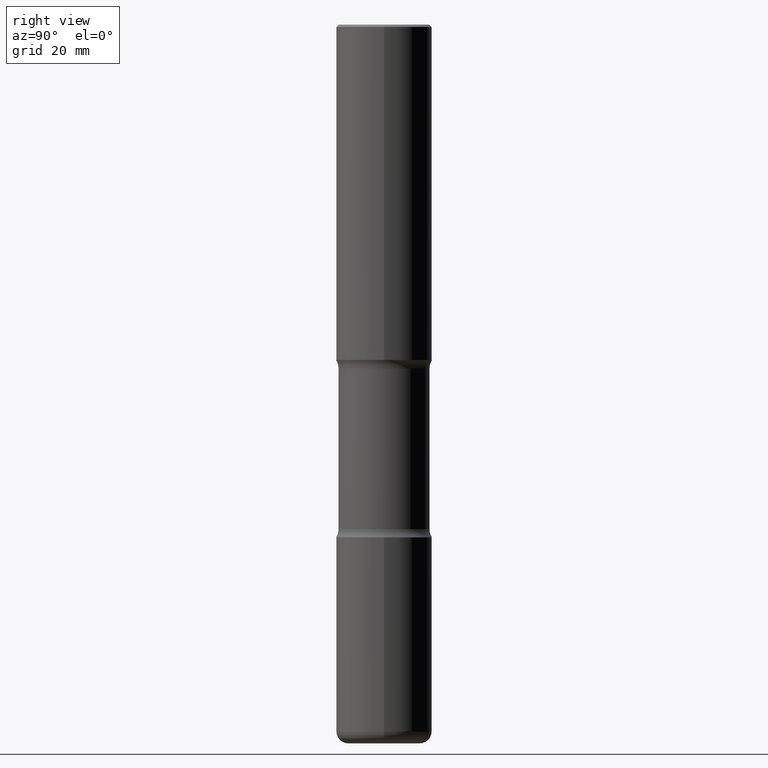
[diagram: clean part render]
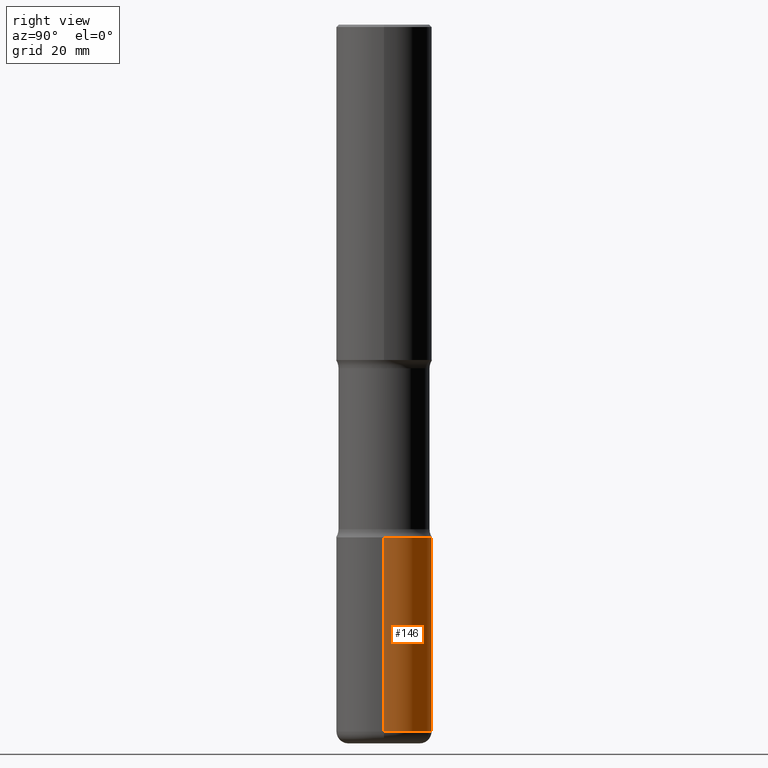
[diagram: same view with one face highlighted and labeled with its STEP entity id]
A machine part, right view. The second image highlights one B-rep face of the part: STEP entity #146.
In plain terms, the highlighted cylindrical surface (partial cylindrical patch) has radius 10 mm, axis along (-0, 0, 1).
Its self-contained STEP definition (entity closure, byte-faithful):
#12 = CARTESIAN_POINT ( 'NONE',  ( -0.3937000000000008271, -1.747797453210850398E-14, -5.807099999999998374 ) ) ;
#20 = FACE_OUTER_BOUND ( 'NONE', #331, .T. ) ;
#35 = CARTESIAN_POINT ( 'NONE',  ( 0.000000000000000000, 0.000000000000000000, 0.000000000000000000 ) ) ;
#64 = CIRCLE ( 'NONE', #71, 0.3937000000000004940 ) ;
#71 = AXIS2_PLACEMENT_3D ( 'NONE', #78, #415, #285 ) ;
#76 = CARTESIAN_POINT ( 'NONE',  ( 0.3937000000000008271, -2.302457368900111381E-14, -5.807099999999998374 ) ) ;
#78 = CARTESIAN_POINT ( 'NONE',  ( 1.420108190439770332E-28, -2.027538128279602429E-14, -5.807099999999998374 ) ) ;
#116 = CARTESIAN_POINT ( 'NONE',  ( 0.3937000000000002720, -1.745740669421571411E-14, -4.212599999999998346 ) ) ;
#118 = DIRECTION ( 'NONE',  ( -2.445468806185136877E-29, 3.491481338843145188E-15, 1.000000000000000000 ) ) ;
#132 = DIRECTION ( 'NONE',  ( -2.445468806185136597E-29, 3.491481338843145583E-15, 1.000000000000000000 ) ) ;
#146 = ADVANCED_FACE ( 'NONE', ( #20 ), #306, .T. ) ;
#150 = DIRECTION ( 'NONE',  ( -2.445468806185136877E-29, 3.491481338843145188E-15, 1.000000000000000000 ) ) ;
#159 = AXIS2_PLACEMENT_3D ( 'NONE', #365, #132, #179 ) ;
#168 = VECTOR ( 'NONE', #150, 39.37007874015748143 ) ;
#179 = DIRECTION ( 'NONE',  ( 1.000000000000000000, -6.982962677686269077E-15, 0.000000000000000000 ) ) ;
#234 = VERTEX_POINT ( 'NONE', #12 ) ;
#285 = DIRECTION ( 'NONE',  ( 1.000000000000000000, -6.982962677686269866E-15, 0.000000000000000000 ) ) ;
#303 = VECTOR ( 'NONE', #118, 39.37007874015748143 ) ;
#306 = CYLINDRICAL_SURFACE ( 'NONE', #405, 0.3937000000000003830 ) ;
#310 = ORIENTED_EDGE ( 'NONE', *, *, #394, .T. ) ;
#331 = EDGE_LOOP ( 'NONE', ( #381, #310, #430, #526 ) ) ;
#343 = EDGE_CURVE ( 'NONE', #429, #234, #64, .T. ) ;
#359 = VERTEX_POINT ( 'NONE', #402 ) ;
#365 = CARTESIAN_POINT ( 'NONE',  ( 1.030178189293550378E-28, -1.470821428801063089E-14, -4.212599999999998346 ) ) ;
#380 = EDGE_CURVE ( 'NONE', #508, #359, #407, .T. ) ;
#381 = ORIENTED_EDGE ( 'NONE', *, *, #343, .T. ) ;
#394 = EDGE_CURVE ( 'NONE', #234, #359, #481, .T. ) ;
#402 = CARTESIAN_POINT ( 'NONE',  ( -0.3937000000000002720, -1.469439103471581201E-14, -4.212599999999998346 ) ) ;
#405 = AXIS2_PLACEMENT_3D ( 'NONE', #35, #545, #507 ) ;
#407 = CIRCLE ( 'NONE', #159, 0.3937000000000002720 ) ;
#415 = DIRECTION ( 'NONE',  ( -2.445468806185136597E-29, 3.491481338843145583E-15, 1.000000000000000000 ) ) ;
#429 = VERTEX_POINT ( 'NONE', #76 ) ;
#430 = ORIENTED_EDGE ( 'NONE', *, *, #380, .F. ) ;
#440 = EDGE_CURVE ( 'NONE', #429, #508, #458, .T. ) ;
#458 = LINE ( 'NONE', #537, #303 ) ;
#481 = LINE ( 'NONE', #557, #168 ) ;
#507 = DIRECTION ( 'NONE',  ( 1.000000000000000000, -6.982962677686266711E-15, 4.876176775795935793E-29 ) ) ;
#508 = VERTEX_POINT ( 'NONE', #116 ) ;
#526 = ORIENTED_EDGE ( 'NONE', *, *, #440, .F. ) ;
#537 = CARTESIAN_POINT ( 'NONE',  ( 0.3937000000000003830, -2.749192406205085978E-15, 1.919750796630861853E-29 ) ) ;
#545 = DIRECTION ( 'NONE',  ( -2.445468806185136597E-29, 3.491481338843145583E-15, 1.000000000000000000 ) ) ;
#557 = CARTESIAN_POINT ( 'NONE',  ( -0.3937000000000003830, 2.797406750687517153E-15, -1.936584745033358137E-29 ) ) ;